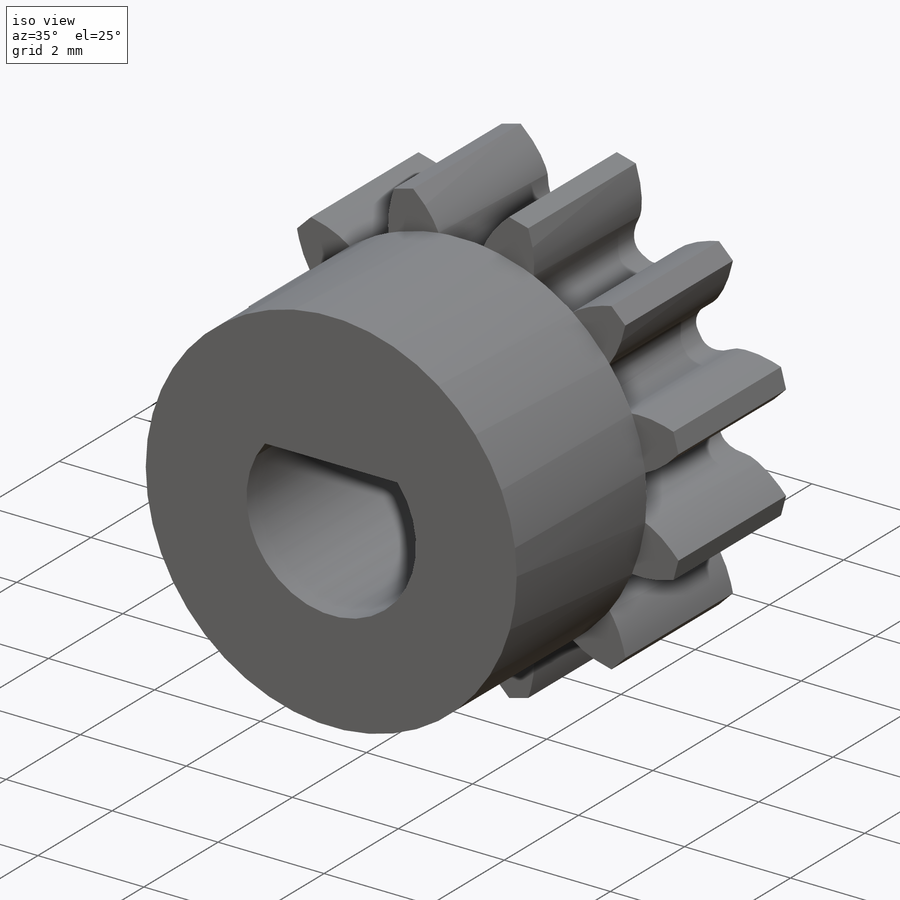
[diagram: iso view]
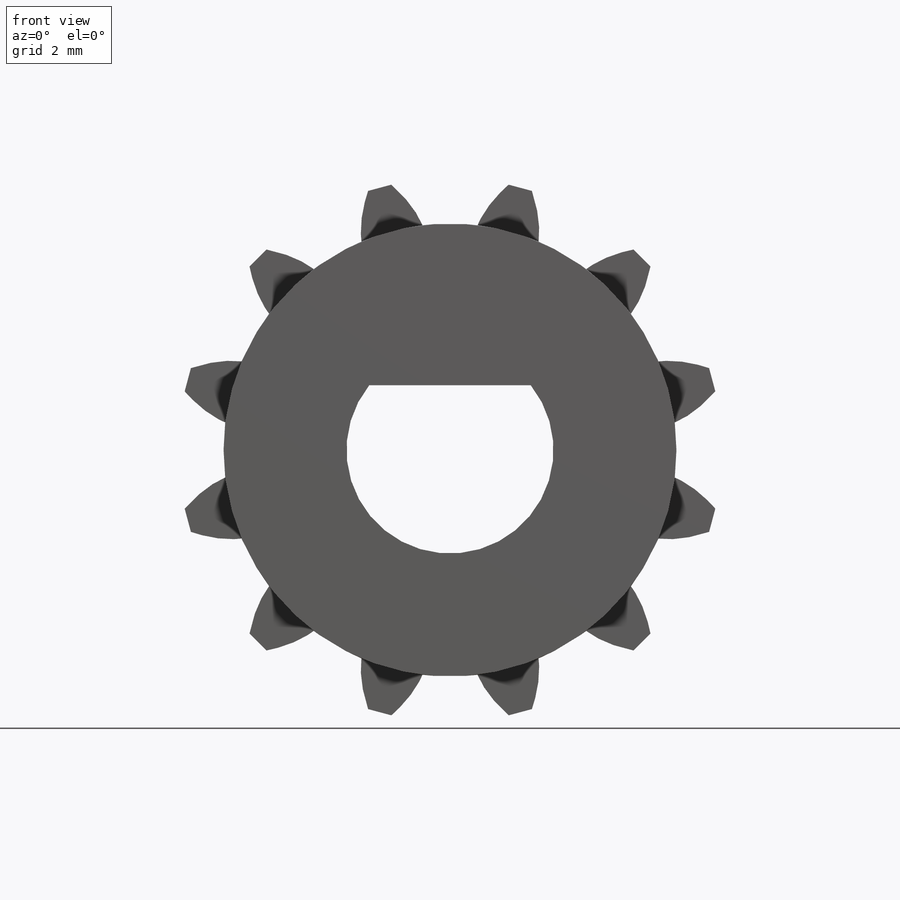
[diagram: front view]
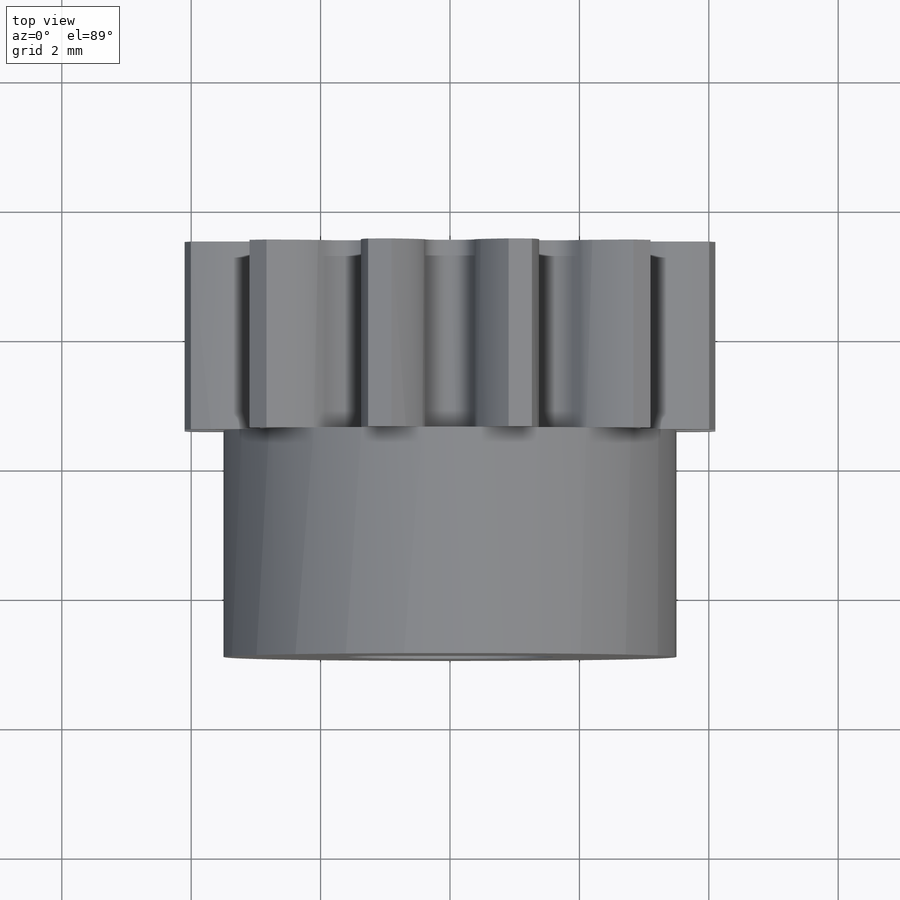
[diagram: top view]
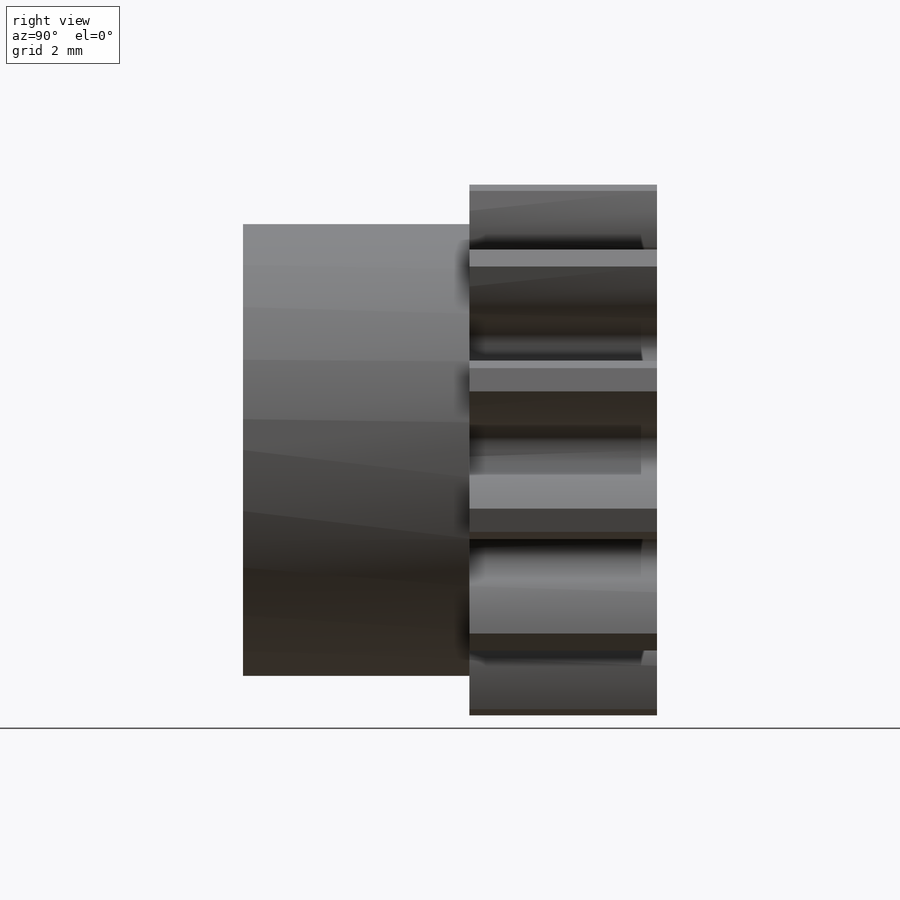
[diagram: right view]
SOLIDWORKS PART (.sldprt)
format: sldprt  version: not decoded by parser v0  size: 488,448 bytes
history: native  units: mm
features: sketch x4, plane x3, extrude x2, cut_extrude x2, material x1 (+10 scaffold rows collapsed)
feature tree (22):
  scaffold x10  (default folders/planes/origin — collapsed)
  material  "材质 <未指定>"
  plane  "前视基准面"
  plane  "上视基准面"
  plane  "右视基准面"
  sketch  "大齿-基础草图        "  dims[D1=~8.400007mm]
  extrude  "0.6 模数    , 7.2000mm P.D."  Depth=2.9mm
  sketch  "齿形草图;   侧隙:             0.0000mm"  dims[D1=12.0]
  cut_extrude  "齿形除料     , 大节距 渐开线 20 度                "  Depth=10mm
  sketch  "草图3"  dims[D1=3.2mm D2=2.6mm]
  cut_extrude  "切除-拉伸2"  Depth=10mm
  sketch  "草图4"  dims[D1=7.0mm]
  extrude  "凸台-拉伸2"  Depth=3.5mm
decode coverage: 8 of 8 modeling features carry decoded parameters
note: ~ marks probable driven/reference dimensions
note: suppression state not decoded; provenance and decode notes live in map.json
